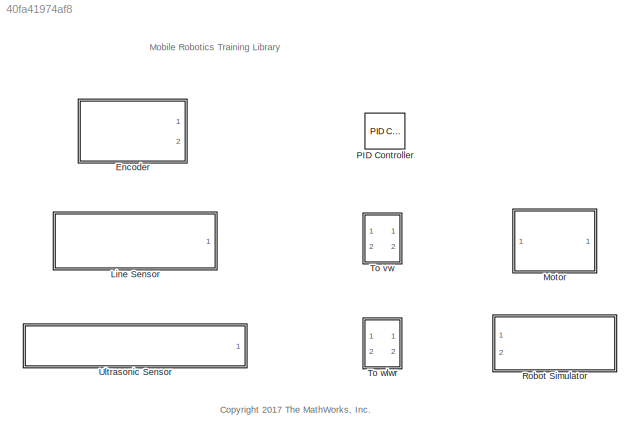
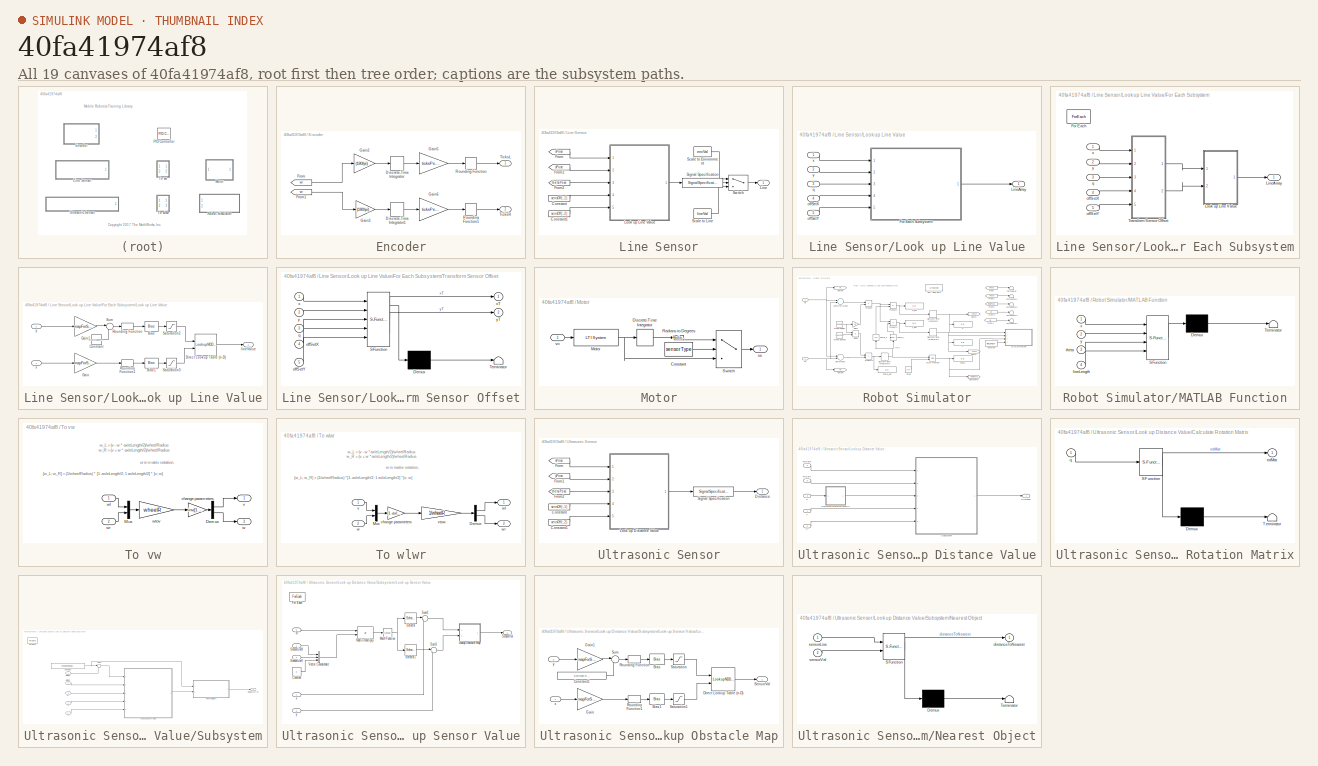
[diagram: thumbnail index - all 19 canvases of the model, root first then tree order]
MODEL slx_40fa41974af8
KIND library
CONFIG AbsTol = auto
CONFIG EnableMultiTasking = off
CONFIG FixedStep = 0.01
CONFIG MaxStep = auto
CONFIG MinStep = auto
CONFIG RelTol = 1e-3
CONFIG SampleTimeConstraint = Unconstrained
CONFIG Solver = FixedStepDiscrete
CONFIG SolverName = FixedStepDiscrete
CONFIG StartTime = 0.0
CONFIG StopTime = 10.0
BLOCK [SubSystem] Encoder
  Ports = [0, 2]
  RequestExecContextInheritance = off
  Variant = off
BLOCK [DiscreteIntegrator] Encoder/Discrete-Time Integrator
  ICPrevOutput = DiscIntNeverNeededParam
  ICPrevScaledInput = DiscIntNeverNeededParam
  InitialConditionSetting = State (most efficient)
  Ports = [1, 1]
  SampleTime = -1
BLOCK [DiscreteIntegrator] Encoder/Discrete-Time Integrator1
  ICPrevOutput = DiscIntNeverNeededParam
  ICPrevScaledInput = DiscIntNeverNeededParam
  InitialConditionSetting = State (most efficient)
  Ports = [1, 1]
  SampleTime = -1
BLOCK [From] Encoder/From
  GotoTag = wl
  TagVisibility = global
BLOCK [From] Encoder/From1
  GotoTag = wr
  TagVisibility = global
BLOCK [Gain] Encoder/Gain2
  Gain = (180/pi)
  OutDataTypeStr = Inherit: Inherit via internal rule
  ParamDataTypeStr = Inherit: Inherit via internal rule
  SaturateOnIntegerOverflow = off
BLOCK [Gain] Encoder/Gain3
  Gain = (180/pi)
  OutDataTypeStr = Inherit: Inherit via internal rule
  ParamDataTypeStr = Inherit: Inherit via internal rule
  SaturateOnIntegerOverflow = off
BLOCK [Gain] Encoder/Gain5
  Gain = ticksPerRot/360
  OutDataTypeStr = Inherit: Inherit via internal rule
  ParamDataTypeStr = Inherit: Inherit via internal rule
  SaturateOnIntegerOverflow = off
BLOCK [Gain] Encoder/Gain6
  Gain = ticksPerRot/360
  OutDataTypeStr = Inherit: Inherit via internal rule
  ParamDataTypeStr = Inherit: Inherit via internal rule
  SaturateOnIntegerOverflow = off
BLOCK [Rounding] Encoder/Rounding Function
  Operator = ceil
BLOCK [Rounding] Encoder/Rounding Function1
  Operator = ceil
BLOCK [Outport] Encoder/TicksL
  IconDisplay = Port number
BLOCK [Outport] Encoder/TicksR
  IconDisplay = Port number
  Port = 2
BLOCK [SubSystem] Line Sensor
  Ports = [0, 1]
  RequestExecContextInheritance = off
  Variant = off
BLOCK [Constant] Line Sensor/Constant
  Value = sensOff(:,1)
BLOCK [Constant] Line Sensor/Constant1
  Value = sensOff(:,2)
BLOCK [From] Line Sensor/From
  GotoTag = xPose
  TagVisibility = global
BLOCK [From] Line Sensor/From1
  GotoTag = yPose
  TagVisibility = global
BLOCK [From] Line Sensor/From2
  GotoTag = thetaPose
  TagVisibility = global
BLOCK [Outport] Line Sensor/Line
  IconDisplay = Port number
BLOCK [SubSystem] Line Sensor/Look up Line Value
  Ports = [5, 1]
  RequestExecContextInheritance = off
  Variant = off
BLOCK [SubSystem] Line Sensor/Look up Line Value/For Each Subsystem
  Ports = [5, 1]
  RequestExecContextInheritance = off
  TreatAsAtomicUnit = on
  Variant = off
BLOCK [ForEach] Line Sensor/Look up Line Value/For Each Subsystem/For Each
  DisableCoverage = on
  IndexMode = One-based
  Ports = []
BLOCK [Outport] Line Sensor/Look up Line Value/For Each Subsystem/LineArray
  ConcatenationDimension = 1
  IconDisplay = Port number
BLOCK [SubSystem] Line Sensor/Look up Line Value/For Each Subsystem/Look up Line Value
  Ports = [2, 1]
  RequestExecContextInheritance = off
  TreatAsAtomicUnit = on
  Variant = off
BLOCK [Bias] Line Sensor/Look up Line Value/For Each Subsystem/Look up Line Value/Bias
  Bias = -1
  SaturateOnIntegerOverflow = off
BLOCK [Bias] Line Sensor/Look up Line Value/For Each Subsystem/Look up Line Value/Bias1
  Bias = -1
  SaturateOnIntegerOverflow = off
BLOCK [Constant] Line Sensor/Look up Line Value/For Each Subsystem/Look up Line Value/Constant
  Value = size(mapForSim.lineFollowingMap,1)
BLOCK [LookupNDDirect] Line Sensor/Look up Line Value/For Each Subsystem/Look up Line Value/Direct Lookup Table (n-D)
  DiagnosticForOutOfRangeInput = Error
  Ports = [2, 1]
  Table = mapForSim.lineFollowingMap
BLOCK [Gain] Line Sensor/Look up Line Value/For Each Subsystem/Look up Line Value/Gain
  Gain = mapForSim.scaleFactor
  OutDataTypeStr = Inherit: Inherit via internal rule
  ParamDataTypeStr = Inherit: Inherit via internal rule
  SaturateOnIntegerOverflow = off
BLOCK [Gain] Line Sensor/Look up Line Value/For Each Subsystem/Look up Line Value/Gain1
  Gain = mapForSim.scaleFactor
  OutDataTypeStr = Inherit: Inherit via internal rule
  ParamDataTypeStr = Inherit: Inherit via internal rule
  SaturateOnIntegerOverflow = off
BLOCK [Rounding] Line Sensor/Look up Line Value/For Each Subsystem/Look up Line Value/Rounding Function
  Operator = round
BLOCK [Rounding] Line Sensor/Look up Line Value/For Each Subsystem/Look up Line Value/Rounding Function1
  Operator = round
BLOCK [Saturate] Line Sensor/Look up Line Value/For Each Subsystem/Look up Line Value/Saturation2
  InputPortMap = u0
  LowerLimit = 0
  Ports = [1, 1]
  UpperLimit = size(mapForSim.lineFollowingMap,1)-1
BLOCK [Saturate] Line Sensor/Look up Line Value/For Each Subsystem/Look up Line Value/Saturation3
  InputPortMap = u0
  LowerLimit = 0
  Ports = [1, 1]
  UpperLimit = size(mapForSim.lineFollowingMap,2)-1
BLOCK [Sum] Line Sensor/Look up Line Value/For Each Subsystem/Look up Line Value/Sum
  IconShape = round
  InputSameDT = off
  Inputs = |-+
  OutDataTypeStr = Inherit: Inherit via internal rule
  Ports = [2, 1]
  SaturateOnIntegerOverflow = off
BLOCK [Outport] Line Sensor/Look up Line Value/For Each Subsystem/Look up Line Value/lineValue
  IconDisplay = Port number
BLOCK [Inport] Line Sensor/Look up Line Value/For Each Subsystem/Look up Line Value/x
  IconDisplay = Port number
BLOCK [Inport] Line Sensor/Look up Line Value/For Each Subsystem/Look up Line Value/y
  IconDisplay = Port number
  Port = 2
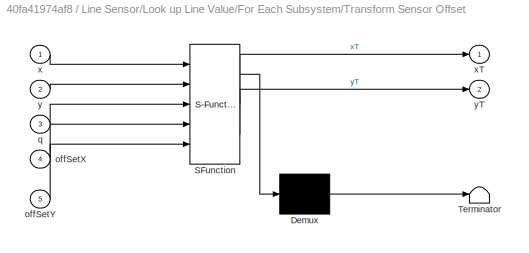
BLOCK [SubSystem] Line Sensor/Look up Line Value/For Each Subsystem/Transform Sensor Offset
  ErrorFcn = Stateflow.Translate.translate
  PermitHierarchicalResolution = ExplicitOnly
  Ports = [5, 2]
  RequestExecContextInheritance = off
  SFBlockType = MATLAB Function
  TreatAsAtomicUnit = on
  Variant = off
BLOCK [Demux] Line Sensor/Look up Line Value/For Each Subsystem/Transform Sensor Offset/ Demux 
  Outputs = 1
  Ports = [1, 1]
BLOCK [S-Function] Line Sensor/Look up Line Value/For Each Subsystem/Transform Sensor Offset/ SFunction 
  EnableBusSupport = off
  FunctionName = sf_sfun
  PortCounts = [5 3]
  Ports = [5, 3]
  SFcnIsStateOwnerBlock = off
  SFunctionDeploymentMode = off
  Tag = Stateflow S-Function mobileRoboticsTrainingLib 2
BLOCK [Terminator] Line Sensor/Look up Line Value/For Each Subsystem/Transform Sensor Offset/ Terminator 
BLOCK [Inport] Line Sensor/Look up Line Value/For Each Subsystem/Transform Sensor Offset/offSetX
  IconDisplay = Port number
  Port = 4
BLOCK [Inport] Line Sensor/Look up Line Value/For Each Subsystem/Transform Sensor Offset/offSetY
  IconDisplay = Port number
  Port = 5
BLOCK [Inport] Line Sensor/Look up Line Value/For Each Subsystem/Transform Sensor Offset/q
  IconDisplay = Port number
  Port = 3
BLOCK [Inport] Line Sensor/Look up Line Value/For Each Subsystem/Transform Sensor Offset/x
  IconDisplay = Port number
BLOCK [Outport] Line Sensor/Look up Line Value/For Each Subsystem/Transform Sensor Offset/xT
  IconDisplay = Port number
BLOCK [Inport] Line Sensor/Look up Line Value/For Each Subsystem/Transform Sensor Offset/y
  IconDisplay = Port number
  Port = 2
BLOCK [Outport] Line Sensor/Look up Line Value/For Each Subsystem/Transform Sensor Offset/yT
  IconDisplay = Port number
  Port = 2
BLOCK [Inport] Line Sensor/Look up Line Value/For Each Subsystem/offSetX
  IconDisplay = Port number
  Partition = on
  PartitionDimension = 1
  PartitionWidth = 1
  Port = 4
BLOCK [Inport] Line Sensor/Look up Line Value/For Each Subsystem/offSetY
  IconDisplay = Port number
  Partition = on
  PartitionDimension = 1
  PartitionWidth = 1
  Port = 5
BLOCK [Inport] Line Sensor/Look up Line Value/For Each Subsystem/q
  IconDisplay = Port number
  Port = 3
BLOCK [Inport] Line Sensor/Look up Line Value/For Each Subsystem/x
  IconDisplay = Port number
BLOCK [Inport] Line Sensor/Look up Line Value/For Each Subsystem/y
  IconDisplay = Port number
  Port = 2
BLOCK [Outport] Line Sensor/Look up Line Value/LineArray
  IconDisplay = Port number
BLOCK [Inport] Line Sensor/Look up Line Value/offSetX
  IconDisplay = Port number
  Port = 4
BLOCK [Inport] Line Sensor/Look up Line Value/offSetY
  IconDisplay = Port number
  Port = 5
BLOCK [Inport] Line Sensor/Look up Line Value/q
  IconDisplay = Port number
  Port = 3
BLOCK [Inport] Line Sensor/Look up Line Value/x
  IconDisplay = Port number
BLOCK [Inport] Line Sensor/Look up Line Value/y
  IconDisplay = Port number
  Port = 2
BLOCK [Constant] Line Sensor/Scale to Environment
  Value = envVal
BLOCK [Constant] Line Sensor/Scale to Line
  Value = lineVal
BLOCK [SignalSpecification] Line Sensor/Signal Specification
  Dimensions = length(sensOff(:,1))
BLOCK [Switch] Line Sensor/Switch
  Criteria = u2 > Threshold
  InputSameDT = off
  SaturateOnIntegerOverflow = off
BLOCK [SubSystem] Motor
  Ports = [1, 1]
  RequestExecContextInheritance = off
  Variant = off
BLOCK [Constant] Motor/Constant
  Value = sensorType
BLOCK [DiscreteIntegrator] Motor/Discrete-Time Integrator
  ICPrevOutput = DiscIntNeverNeededParam
  ICPrevScaledInput = DiscIntNeverNeededParam
  InitialConditionSetting = State (most efficient)
  Ports = [1, 1]
  SampleTime = -1
BLOCK [Reference] Motor/Motor  REF=cstblocks/LTI System
  Ports = [1, 1]
  SourceBlock = cstblocks/LTI System
  SourceProductBaseCode = CT
  SourceProductName = Control System Toolbox
  SourceType = LTI Block
BLOCK [Reference] Motor/Radians to Degrees  REF=simulink_extras/Transformations/Radians
to Degrees
  Ports = [1, 1]
  SourceBlock = simulink_extras/Transformations/Radians\nto Degrees
  SourceProductBaseCode = SL
  SourceProductName = Simulink
  SourceType = RadiansToDegrees
BLOCK [Switch] Motor/Switch
  Criteria = u2 > Threshold
  InputSameDT = off
  SaturateOnIntegerOverflow = off
  Threshold = 1
BLOCK [Outport] Motor/se
  IconDisplay = Port number
BLOCK [Inport] Motor/vo
  IconDisplay = Port number
BLOCK [Reference] PID Controller  REF=simulink/Continuous/PID Controller
  Ports = [1, 1]
  SourceBlock = simulink/Continuous/PID Controller
  SourceProductBaseCode = SL
  SourceProductName = Simulink
  SourceType = PID 1dof
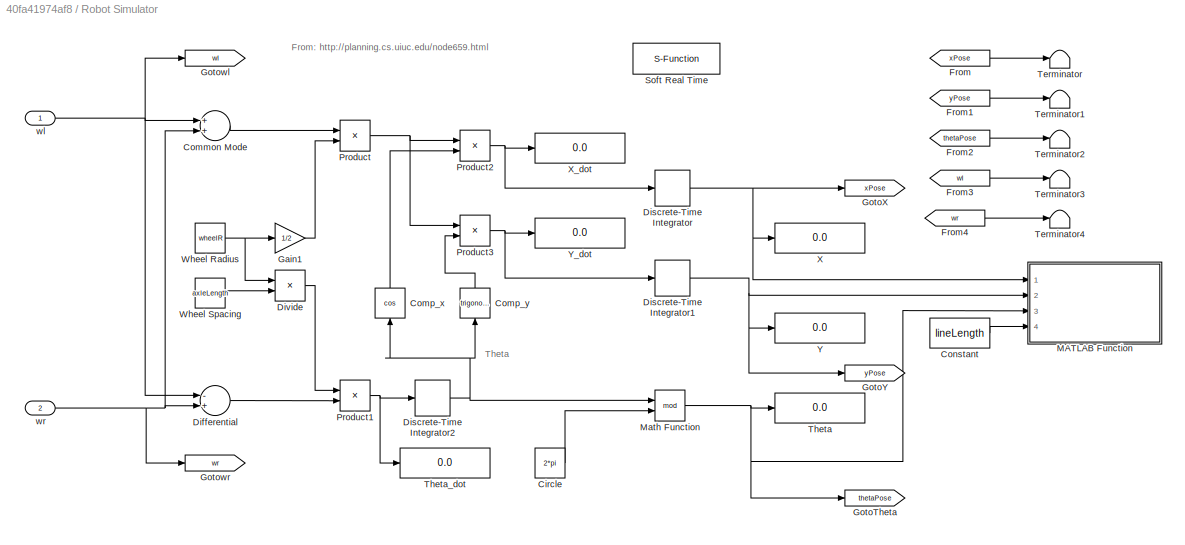
BLOCK [SubSystem] Robot Simulator
  Ports = [2]
  Priority = 99
  RequestExecContextInheritance = off
  Variant = off
BLOCK [Constant] Robot Simulator/Circle
  Value = 2*pi
BLOCK [Sum] Robot Simulator/Common Mode
  InputSameDT = off
  OutDataTypeStr = Inherit: Inherit via internal rule
  Ports = [2, 1]
  SaturateOnIntegerOverflow = off
BLOCK [Trigonometry] Robot Simulator/Comp_x
  Operator = cos
  Ports = [1, 1]
BLOCK [Trigonometry] Robot Simulator/Comp_y
  Ports = [1, 1]
BLOCK [Constant] Robot Simulator/Constant
  Value = lineLength
BLOCK [Sum] Robot Simulator/Differential
  InputSameDT = off
  Inputs = -+
  OutDataTypeStr = Inherit: Inherit via internal rule
  Ports = [2, 1]
  SaturateOnIntegerOverflow = off
BLOCK [DiscreteIntegrator] Robot Simulator/Discrete-Time Integrator
  ICPrevOutput = DiscIntNeverNeededParam
  ICPrevScaledInput = DiscIntNeverNeededParam
  InitialCondition = startX
  InitialConditionSetting = State (most efficient)
  Ports = [1, 1]
  SampleTime = -1
BLOCK [DiscreteIntegrator] Robot Simulator/Discrete-Time Integrator1
  ICPrevOutput = DiscIntNeverNeededParam
  ICPrevScaledInput = DiscIntNeverNeededParam
  InitialCondition = startY
  InitialConditionSetting = State (most efficient)
  Ports = [1, 1]
  SampleTime = -1
BLOCK [DiscreteIntegrator] Robot Simulator/Discrete-Time Integrator2
  ICPrevOutput = DiscIntNeverNeededParam
  ICPrevScaledInput = DiscIntNeverNeededParam
  InitialCondition = startTheta*(pi/180)
  InitialConditionSetting = State (most efficient)
  Ports = [1, 1]
  SampleTime = -1
BLOCK [Product] Robot Simulator/Divide
  InputSameDT = off
  Inputs = */
  OutDataTypeStr = Inherit: Inherit via internal rule
  Ports = [2, 1]
  RndMeth = Floor
  SaturateOnIntegerOverflow = off
BLOCK [From] Robot Simulator/From
  GotoTag = xPose
  TagVisibility = global
BLOCK [From] Robot Simulator/From1
  GotoTag = yPose
  TagVisibility = global
BLOCK [From] Robot Simulator/From2
  GotoTag = thetaPose
  TagVisibility = global
BLOCK [From] Robot Simulator/From3
  GotoTag = wl
BLOCK [From] Robot Simulator/From4
  GotoTag = wr
BLOCK [Gain] Robot Simulator/Gain1
  Gain = 1/2
  OutDataTypeStr = Inherit: Inherit via internal rule
  ParamDataTypeStr = Inherit: Inherit via internal rule
  SaturateOnIntegerOverflow = off
BLOCK [Goto] Robot Simulator/GotoTheta
  GotoTag = thetaPose
  TagVisibility = global
BLOCK [Goto] Robot Simulator/GotoX
  GotoTag = xPose
  TagVisibility = global
BLOCK [Goto] Robot Simulator/GotoY
  GotoTag = yPose
  TagVisibility = global
BLOCK [Goto] Robot Simulator/Gotowl
  GotoTag = wl
  TagVisibility = global
BLOCK [Goto] Robot Simulator/Gotowr
  GotoTag = wr
  TagVisibility = global
BLOCK [SubSystem] Robot Simulator/MATLAB Function
  ErrorFcn = Stateflow.Translate.translate
  PermitHierarchicalResolution = ExplicitOnly
  Ports = [4]
  RequestExecContextInheritance = off
  SFBlockType = MATLAB Function
  TreatAsAtomicUnit = on
  Variant = off
BLOCK [Demux] Robot Simulator/MATLAB Function/ Demux 
  Outputs = 1
  Ports = [1, 1]
BLOCK [S-Function] Robot Simulator/MATLAB Function/ SFunction 
  EnableBusSupport = off
  FunctionName = sf_sfun
  PortCounts = [4 1]
  Ports = [4, 1]
  SFcnIsStateOwnerBlock = off
  SFunctionDeploymentMode = off
  Tag = Stateflow S-Function mobileRoboticsTrainingLib 1
BLOCK [Terminator] Robot Simulator/MATLAB Function/ Terminator 
BLOCK [Inport] Robot Simulator/MATLAB Function/lineLength
  IconDisplay = Port number
  Port = 4
BLOCK [Inport] Robot Simulator/MATLAB Function/theta
  IconDisplay = Port number
  Port = 3
BLOCK [Inport] Robot Simulator/MATLAB Function/x
  IconDisplay = Port number
BLOCK [Inport] Robot Simulator/MATLAB Function/y
  IconDisplay = Port number
  Port = 2
BLOCK [Math] Robot Simulator/Math Function
  Operator = mod
  Ports = [2, 1]
BLOCK [Product] Robot Simulator/Product
  InputSameDT = off
  OutDataTypeStr = Inherit: Inherit via internal rule
  Ports = [2, 1]
  SaturateOnIntegerOverflow = off
BLOCK [Product] Robot Simulator/Product1
  InputSameDT = off
  OutDataTypeStr = Inherit: Inherit via internal rule
  Ports = [2, 1]
  SaturateOnIntegerOverflow = off
BLOCK [Product] Robot Simulator/Product2
  InputSameDT = off
  OutDataTypeStr = Inherit: Inherit via internal rule
  Ports = [2, 1]
  SaturateOnIntegerOverflow = off
BLOCK [Product] Robot Simulator/Product3
  InputSameDT = off
  OutDataTypeStr = Inherit: Inherit via internal rule
  Ports = [2, 1]
  SaturateOnIntegerOverflow = off
BLOCK [S-Function] Robot Simulator/Soft Real Time
  EnableBusSupport = off
  FunctionName = sfun_time
  Parameters = x
  Ports = []
  SFcnIsStateOwnerBlock = off
  SFunctionDeploymentMode = off
BLOCK [Terminator] Robot Simulator/Terminator
BLOCK [Terminator] Robot Simulator/Terminator1
BLOCK [Terminator] Robot Simulator/Terminator2
BLOCK [Terminator] Robot Simulator/Terminator3
BLOCK [Terminator] Robot Simulator/Terminator4
BLOCK [Display] Robot Simulator/Theta
  Decimation = 1
  Ports = [1]
BLOCK [Display] Robot Simulator/Theta_dot
  Decimation = 1
  Ports = [1]
BLOCK [Constant] Robot Simulator/Wheel Radius
  Value = wheelR
BLOCK [Constant] Robot Simulator/Wheel Spacing
  Value = axleLength
BLOCK [Display] Robot Simulator/X
  Decimation = 1
  Ports = [1]
BLOCK [Display] Robot Simulator/X_dot
  Decimation = 1
  Ports = [1]
BLOCK [Display] Robot Simulator/Y
  Decimation = 1
  Ports = [1]
BLOCK [Display] Robot Simulator/Y_dot
  Decimation = 1
  Ports = [1]
BLOCK [Inport] Robot Simulator/wl
  IconDisplay = Port number
BLOCK [Inport] Robot Simulator/wr
  IconDisplay = Port number
  Port = 2
BLOCK [SubSystem] To vw
  Ports = [2, 2]
  RequestExecContextInheritance = off
  Variant = off
BLOCK [Demux] To vw/Demux
  DisplayOption = bar
  Outputs = 2
  Ports = [1, 2]
BLOCK [Mux] To vw/Mux
  DisplayOption = bar
  Inputs = 2
  Ports = [2, 1]
BLOCK [Gain] To vw/change parameters
  Gain = inv([1 -axleLength/2; 1 axleLength/2])
  Multiplication = Matrix(K*u)
  OutDataTypeStr = Inherit: Inherit via internal rule
  ParamDataTypeStr = Inherit: Inherit via internal rule
  SaturateOnIntegerOverflow = off
BLOCK [Outport] To vw/v
  IconDisplay = Port number
BLOCK [Outport] To vw/w
  IconDisplay = Port number
  Port = 2
BLOCK [Inport] To vw/wl
  IconDisplay = Port number
BLOCK [Inport] To vw/wr
  IconDisplay = Port number
  Port = 2
BLOCK [Gain] To vw/wtov
  Gain = wheelR
  Multiplication = Matrix(K*u)
  OutDataTypeStr = Inherit: Inherit via internal rule
  ParamDataTypeStr = Inherit: Inherit via internal rule
  SaturateOnIntegerOverflow = off
BLOCK [SubSystem] To wlwr
  Ports = [2, 2]
  RequestExecContextInheritance = off
  Variant = off
BLOCK [Demux] To wlwr/Demux
  DisplayOption = bar
  Outputs = 2
  Ports = [1, 2]
BLOCK [Mux] To wlwr/Mux
  DisplayOption = bar
  Inputs = 2
  Ports = [2, 1]
BLOCK [Gain] To wlwr/change parameters
  Gain = [1 -axleLength/2; 1 axleLength/2]
  Multiplication = Matrix(K*u)
  OutDataTypeStr = Inherit: Inherit via internal rule
  ParamDataTypeStr = Inherit: Inherit via internal rule
  SaturateOnIntegerOverflow = off
BLOCK [Inport] To wlwr/v
  IconDisplay = Port number
BLOCK [Gain] To wlwr/vtow
  Gain = 1/wheelR
  Multiplication = Matrix(K*u)
  OutDataTypeStr = Inherit: Inherit via internal rule
  ParamDataTypeStr = Inherit: Inherit via internal rule
  SaturateOnIntegerOverflow = off
BLOCK [Inport] To wlwr/w
  IconDisplay = Port number
  Port = 2
BLOCK [Outport] To wlwr/wl
  IconDisplay = Port number
BLOCK [Outport] To wlwr/wr
  IconDisplay = Port number
  Port = 2
BLOCK [SubSystem] Ultrasonic Sensor
  Ports = [0, 1]
  RequestExecContextInheritance = off
  Variant = off
BLOCK [Constant] Ultrasonic Sensor/Constant
  Value = sensOff(:,1)
BLOCK [Constant] Ultrasonic Sensor/Constant1
  Value = sensOff(:,2)
BLOCK [Outport] Ultrasonic Sensor/Distance
  IconDisplay = Port number
BLOCK [From] Ultrasonic Sensor/From
  GotoTag = xPose
  TagVisibility = global
BLOCK [From] Ultrasonic Sensor/From1
  GotoTag = yPose
  TagVisibility = global
BLOCK [From] Ultrasonic Sensor/From2
  GotoTag = thetaPose
  TagVisibility = global
BLOCK [SubSystem] Ultrasonic Sensor/Look up Distance Value
  Ports = [5, 1]
  RequestExecContextInheritance = off
  Variant = off
BLOCK [SubSystem] Ultrasonic Sensor/Look up Distance Value/Calculate Rotation Matrix
  ErrorFcn = Stateflow.Translate.translate
  PermitHierarchicalResolution = ExplicitOnly
  Ports = [1, 1]
  RequestExecContextInheritance = off
  SFBlockType = MATLAB Function
  TreatAsAtomicUnit = on
  Variant = off
BLOCK [Demux] Ultrasonic Sensor/Look up Distance Value/Calculate Rotation Matrix/ Demux 
  Outputs = 1
  Ports = [1, 1]
BLOCK [S-Function] Ultrasonic Sensor/Look up Distance Value/Calculate Rotation Matrix/ SFunction 
  EnableBusSupport = off
  FunctionName = sf_sfun
  PortCounts = [1 2]
  Ports = [1, 2]
  SFcnIsStateOwnerBlock = off
  SFunctionDeploymentMode = off
  Tag = Stateflow S-Function mobileRoboticsTrainingLib 4
BLOCK [Terminator] Ultrasonic Sensor/Look up Distance Value/Calculate Rotation Matrix/ Terminator 
BLOCK [Inport] Ultrasonic Sensor/Look up Distance Value/Calculate Rotation Matrix/q
  IconDisplay = Port number
BLOCK [Outport] Ultrasonic Sensor/Look up Distance Value/Calculate Rotation Matrix/rotMat
  IconDisplay = Port number
BLOCK [Outport] Ultrasonic Sensor/Look up Distance Value/Distance
  IconDisplay = Port number
BLOCK [SubSystem] Ultrasonic Sensor/Look up Distance Value/Subsystem
  Ports = [5, 1]
  RequestExecContextInheritance = off
  Variant = off
BLOCK [Constant] Ultrasonic Sensor/Look up Distance Value/Subsystem/Constant
  Value = minSenRange:senRes:maxSenRange
BLOCK [Outport] Ultrasonic Sensor/Look up Distance Value/Subsystem/DistanceArray
  ConcatenationDimension = 1
  IconDisplay = Port number
BLOCK [ForEach] Ultrasonic Sensor/Look up Distance Value/Subsystem/For Each
  DisableCoverage = on
  IndexMode = One-based
  Ports = []
BLOCK [SubSystem] Ultrasonic Sensor/Look up Distance Value/Subsystem/Look up Sensor Value
  Ports = [5, 1]
  RequestExecContextInheritance = off
  TreatAsAtomicUnit = on
  Variant = off
BLOCK [Constant] Ultrasonic Sensor/Look up Distance Value/Subsystem/Look up Sensor Value/Constant
  Value = 0
BLOCK [ForEach] Ultrasonic Sensor/Look up Distance Value/Subsystem/Look up Sensor Value/For Each
  DisableCoverage = on
  IndexMode = One-based
  Ports = []
BLOCK [SubSystem] Ultrasonic Sensor/Look up Distance Value/Subsystem/Look up Sensor Value/Lookup Obstacle Map
  Ports = [2, 1]
  RequestExecContextInheritance = off
  Variant = off
BLOCK [Bias] Ultrasonic Sensor/Look up Distance Value/Subsystem/Look up Sensor Value/Lookup Obstacle Map/Bias
  Bias = -1
  SaturateOnIntegerOverflow = off
BLOCK [Bias] Ultrasonic Sensor/Look up Distance Value/Subsystem/Look up Sensor Value/Lookup Obstacle Map/Bias1
  Bias = -1
  SaturateOnIntegerOverflow = off
BLOCK [Constant] Ultrasonic Sensor/Look up Distance Value/Subsystem/Look up Sensor Value/Lookup Obstacle Map/Constant1
  Value = size(mapForSim.obsMap,1)
BLOCK [LookupNDDirect] Ultrasonic Sensor/Look up Distance Value/Subsystem/Look up Sensor Value/Lookup Obstacle Map/Direct Lookup Table (n-D)
  DiagnosticForOutOfRangeInput = Error
  Ports = [2, 1]
  Table = mapForSim.obsMap
BLOCK [Gain] Ultrasonic Sensor/Look up Distance Value/Subsystem/Look up Sensor Value/Lookup Obstacle Map/Gain
  Gain = mapForSim.scaleFactor
  OutDataTypeStr = Inherit: Inherit via internal rule
  ParamDataTypeStr = Inherit: Inherit via internal rule
  SaturateOnIntegerOverflow = off
BLOCK [Gain] Ultrasonic Sensor/Look up Distance Value/Subsystem/Look up Sensor Value/Lookup Obstacle Map/Gain1
  Gain = mapForSim.scaleFactor
  OutDataTypeStr = Inherit: Inherit via internal rule
  ParamDataTypeStr = Inherit: Inherit via internal rule
  SaturateOnIntegerOverflow = off
BLOCK [Rounding] Ultrasonic Sensor/Look up Distance Value/Subsystem/Look up Sensor Value/Lookup Obstacle Map/Rounding Function
  Operator = round
BLOCK [Rounding] Ultrasonic Sensor/Look up Distance Value/Subsystem/Look up Sensor Value/Lookup Obstacle Map/Rounding Function1
  Operator = round
BLOCK [Saturate] Ultrasonic Sensor/Look up Distance Value/Subsystem/Look up Sensor Value/Lookup Obstacle Map/Saturation
  InputPortMap = u0
  LowerLimit = 0
  Ports = [1, 1]
  UpperLimit = size(mapForSim.obsMap,1)-1
BLOCK [Saturate] Ultrasonic Sensor/Look up Distance Value/Subsystem/Look up Sensor Value/Lookup Obstacle Map/Saturation1
  InputPortMap = u0
  LowerLimit = 0
  Ports = [1, 1]
  UpperLimit = size(mapForSim.obsMap,2)-1
BLOCK [Outport] Ultrasonic Sensor/Look up Distance Value/Subsystem/Look up Sensor Value/Lookup Obstacle Map/SensorVal
  IconDisplay = Port number
BLOCK [Sum] Ultrasonic Sensor/Look up Distance Value/Subsystem/Look up Sensor Value/Lookup Obstacle Map/Sum
  IconShape = round
  InputSameDT = off
  Inputs = |-+
  OutDataTypeStr = Inherit: Inherit via internal rule
  Ports = [2, 1]
  SaturateOnIntegerOverflow = off
BLOCK [Inport] Ultrasonic Sensor/Look up Distance Value/Subsystem/Look up Sensor Value/Lookup Obstacle Map/x
  IconDisplay = Port number
BLOCK [Inport] Ultrasonic Sensor/Look up Distance Value/Subsystem/Look up Sensor Value/Lookup Obstacle Map/y
  IconDisplay = Port number
  Port = 2
BLOCK [Math] Ultrasonic Sensor/Look up Distance Value/Subsystem/Look up Sensor Value/Math Function
  Operator = transpose
  Ports = [1, 1]
BLOCK [Product] Ultrasonic Sensor/Look up Distance Value/Subsystem/Look up Sensor Value/Matrix Multiply
  InputSameDT = off
  Multiplication = Matrix(*)
  OutDataTypeStr = Inherit: Inherit via internal rule
  Ports = [2, 1]
  RndMeth = Floor
  SaturateOnIntegerOverflow = off
BLOCK [Inport] Ultrasonic Sensor/Look up Distance Value/Subsystem/Look up Sensor Value/R
  IconDisplay = Port number
  Port = 3
BLOCK [Selector] Ultrasonic Sensor/Look up Distance Value/Subsystem/Look up Sensor Value/Selector
  IndexOptions = Index vector (dialog)
  Indices = 1
  InputPortWidth = 3
  OutputSizes = 1
  Ports = [1, 1]
BLOCK [Selector] Ultrasonic Sensor/Look up Distance Value/Subsystem/Look up Sensor Value/Selector1
  IndexOptions = Index vector (dialog)
  Indices = [2]
  InputPortWidth = 3
  OutputSizes = 1
  Ports = [1, 1]
BLOCK [Inport] Ultrasonic Sensor/Look up Distance Value/Subsystem/Look up Sensor Value/SensorLineX
  IconDisplay = Port number
  Partition = on
  PartitionDimension = 1
  PartitionWidth = 1
BLOCK [Inport] Ultrasonic Sensor/Look up Distance Value/Subsystem/Look up Sensor Value/SensorLineY
  IconDisplay = Port number
  Port = 2
BLOCK [Outport] Ultrasonic Sensor/Look up Distance Value/Subsystem/Look up Sensor Value/SensorVal
  ConcatenationDimension = 1
  IconDisplay = Port number
BLOCK [Sum] Ultrasonic Sensor/Look up Distance Value/Subsystem/Look up Sensor Value/Sum2
  IconShape = round
  InputSameDT = off
  Inputs = |++
  OutDataTypeStr = Inherit: Inherit via internal rule
  Ports = [2, 1]
  SaturateOnIntegerOverflow = off
BLOCK [Sum] Ultrasonic Sensor/Look up Distance Value/Subsystem/Look up Sensor Value/Sum3
  IconShape = round
  InputSameDT = off
  Inputs = |++
  OutDataTypeStr = Inherit: Inherit via internal rule
  Ports = [2, 1]
  SaturateOnIntegerOverflow = off
BLOCK [Concatenate] Ultrasonic Sensor/Look up Distance Value/Subsystem/Look up Sensor Value/Vector Concatenate
  Mode = Multidimensional array
  NumInputs = 3
  Ports = [3, 1]
BLOCK [Inport] Ultrasonic Sensor/Look up Distance Value/Subsystem/Look up Sensor Value/x
  IconDisplay = Port number
  Port = 4
BLOCK [Inport] Ultrasonic Sensor/Look up Distance Value/Subsystem/Look up Sensor Value/y
  IconDisplay = Port number
  Port = 5
BLOCK [SubSystem] Ultrasonic Sensor/Look up Distance Value/Subsystem/Nearest Object
  ErrorFcn = Stateflow.Translate.translate
  PermitHierarchicalResolution = ExplicitOnly
  Ports = [2, 1]
  RequestExecContextInheritance = off
  SFBlockType = MATLAB Function
  TreatAsAtomicUnit = on
  Variant = off
BLOCK [Demux] Ultrasonic Sensor/Look up Distance Value/Subsystem/Nearest Object/ Demux 
  Outputs = 1
  Ports = [1, 1]
BLOCK [S-Function] Ultrasonic Sensor/Look up Distance Value/Subsystem/Nearest Object/ SFunction 
  EnableBusSupport = off
  FunctionName = sf_sfun
  PortCounts = [2 2]
  Ports = [2, 2]
  SFcnIsStateOwnerBlock = off
  SFunctionDeploymentMode = off
  Tag = Stateflow S-Function mobileRoboticsTrainingLib 5
BLOCK [Terminator] Ultrasonic Sensor/Look up Distance Value/Subsystem/Nearest Object/ Terminator 
BLOCK [Outport] Ultrasonic Sensor/Look up Distance Value/Subsystem/Nearest Object/distanceToNearest
  IconDisplay = Port number
BLOCK [Inport] Ultrasonic Sensor/Look up Distance Value/Subsystem/Nearest Object/sensorLine
  IconDisplay = Port number
BLOCK [Inport] Ultrasonic Sensor/Look up Distance Value/Subsystem/Nearest Object/sensorVal
  IconDisplay = Port number
  Port = 2
BLOCK [Inport] Ultrasonic Sensor/Look up Distance Value/Subsystem/R
  IconDisplay = Port number
  Port = 3
BLOCK [Sum] Ultrasonic Sensor/Look up Distance Value/Subsystem/Sum1
  IconShape = round
  InputSameDT = off
  Inputs = |++
  OutDataTypeStr = Inherit: Inherit via internal rule
  Ports = [2, 1]
  SaturateOnIntegerOverflow = off
BLOCK [Inport] Ultrasonic Sensor/Look up Distance Value/Subsystem/offSetX
  IconDisplay = Port number
  Partition = on
  PartitionDimension = 1
  PartitionWidth = 1
BLOCK [Inport] Ultrasonic Sensor/Look up Distance Value/Subsystem/offSetY
  IconDisplay = Port number
  Partition = on
  PartitionDimension = 1
  PartitionWidth = 1
  Port = 2
BLOCK [Inport] Ultrasonic Sensor/Look up Distance Value/Subsystem/x
  IconDisplay = Port number
  Port = 4
BLOCK [Inport] Ultrasonic Sensor/Look up Distance Value/Subsystem/y
  IconDisplay = Port number
  Port = 5
BLOCK [Inport] Ultrasonic Sensor/Look up Distance Value/offSetX
  IconDisplay = Port number
  Port = 4
BLOCK [Inport] Ultrasonic Sensor/Look up Distance Value/offSetY
  IconDisplay = Port number
  Port = 5
BLOCK [Inport] Ultrasonic Sensor/Look up Distance Value/q
  IconDisplay = Port number
  Port = 3
BLOCK [Inport] Ultrasonic Sensor/Look up Distance Value/x
  IconDisplay = Port number
BLOCK [Inport] Ultrasonic Sensor/Look up Distance Value/y
  IconDisplay = Port number
  Port = 2
BLOCK [SignalSpecification] Ultrasonic Sensor/Signal Specification
  Dimensions = length(sensOff(:,1))
ANNOTATION (root): Mobile Robotics Training Library
ANNOTATION (root): <copyright redacted>
ANNOTATION Robot Simulator: From: http://planning.cs.uiuc.edu/node659.html
ANNOTATION Robot Simulator: Theta
ANNOTATION To vw: [w_L; w_R] = (1/wheelRadius) * [1 -axleLength/2; 1 axleLength/2] * [v; w]
ANNOTATION To vw: or in matrix notation,
ANNOTATION To vw: w_L = (v - w * axleLength/2)/wheelRadius w_R = (v + w * axleLength/2)/wheelRadius
ANNOTATION To wlwr: [w_L; w_R] = (1/wheelRadius) * [1 -axleLength/2; 1 axleLength/2] * [v; w]
ANNOTATION To wlwr: or in matrix notation,
ANNOTATION To wlwr: w_L = (v - w * axleLength/2)/wheelRadius w_R = (v + w * axleLength/2)/wheelRadius
LINE Encoder/Discrete-Time Integrator1:1 -> Encoder/Gain6:1
LINE Encoder/Discrete-Time Integrator:1 -> Encoder/Gain5:1
LINE Encoder/From1:1 -> Encoder/Gain3:1
LINE Encoder/From:1 -> Encoder/Gain2:1
LINE Encoder/Gain2:1 -> Encoder/Discrete-Time Integrator:1
LINE Encoder/Gain3:1 -> Encoder/Discrete-Time Integrator1:1
LINE Encoder/Gain5:1 -> Encoder/Rounding Function:1
LINE Encoder/Gain6:1 -> Encoder/Rounding Function1:1
LINE Encoder/Rounding Function1:1 -> Encoder/TicksR:1
LINE Encoder/Rounding Function:1 -> Encoder/TicksL:1
LINE Line Sensor/Constant1:1 -> Line Sensor/Look up Line Value:5
LINE Line Sensor/Constant:1 -> Line Sensor/Look up Line Value:4
LINE Line Sensor/From1:1 -> Line Sensor/Look up Line Value:2
LINE Line Sensor/From2:1 -> Line Sensor/Look up Line Value:3
LINE Line Sensor/From:1 -> Line Sensor/Look up Line Value:1
LINE Line Sensor/Look up Line Value/For Each Subsystem/Look up Line Value/Bias1:1 -> Line Sensor/Look up Line Value/For Each Subsystem/Look up Line Value/Saturation3:1
LINE Line Sensor/Look up Line Value/For Each Subsystem/Look up Line Value/Bias:1 -> Line Sensor/Look up Line Value/For Each Subsystem/Look up Line Value/Saturation2:1
LINE Line Sensor/Look up Line Value/For Each Subsystem/Look up Line Value/Constant:1 -> Line Sensor/Look up Line Value/For Each Subsystem/Look up Line Value/Sum:2
LINE Line Sensor/Look up Line Value/For Each Subsystem/Look up Line Value/Direct Lookup Table (n-D):1 -> Line Sensor/Look up Line Value/For Each Subsystem/Look up Line Value/lineValue:1
LINE Line Sensor/Look up Line Value/For Each Subsystem/Look up Line Value/Gain1:1 -> Line Sensor/Look up Line Value/For Each Subsystem/Look up Line Value/Sum:1
LINE Line Sensor/Look up Line Value/For Each Subsystem/Look up Line Value/Gain:1 -> Line Sensor/Look up Line Value/For Each Subsystem/Look up Line Value/Rounding Function1:1
LINE Line Sensor/Look up Line Value/For Each Subsystem/Look up Line Value/Rounding Function1:1 -> Line Sensor/Look up Line Value/For Each Subsystem/Look up Line Value/Bias1:1
LINE Line Sensor/Look up Line Value/For Each Subsystem/Look up Line Value/Rounding Function:1 -> Line Sensor/Look up Line Value/For Each Subsystem/Look up Line Value/Bias:1
LINE Line Sensor/Look up Line Value/For Each Subsystem/Look up Line Value/Saturation2:1 -> Line Sensor/Look up Line Value/For Each Subsystem/Look up Line Value/Direct Lookup Table (n-D):1
LINE Line Sensor/Look up Line Value/For Each Subsystem/Look up Line Value/Saturation3:1 -> Line Sensor/Look up Line Value/For Each Subsystem/Look up Line Value/Direct Lookup Table (n-D):2
LINE Line Sensor/Look up Line Value/For Each Subsystem/Look up Line Value/Sum:1 -> Line Sensor/Look up Line Value/For Each Subsystem/Look up Line Value/Rounding Function:1
LINE Line Sensor/Look up Line Value/For Each Subsystem/Look up Line Value/x:1 -> Line Sensor/Look up Line Value/For Each Subsystem/Look up Line Value/Gain:1
LINE Line Sensor/Look up Line Value/For Each Subsystem/Look up Line Value/y:1 -> Line Sensor/Look up Line Value/For Each Subsystem/Look up Line Value/Gain1:1
LINE Line Sensor/Look up Line Value/For Each Subsystem/Look up Line Value:1 -> Line Sensor/Look up Line Value/For Each Subsystem/LineArray:1
LINE Line Sensor/Look up Line Value/For Each Subsystem/Transform Sensor Offset:1 -> Line Sensor/Look up Line Value/For Each Subsystem/Look up Line Value:1
LINE Line Sensor/Look up Line Value/For Each Subsystem/Transform Sensor Offset:2 -> Line Sensor/Look up Line Value/For Each Subsystem/Look up Line Value:2
LINE Line Sensor/Look up Line Value/For Each Subsystem/offSetX:1 -> Line Sensor/Look up Line Value/For Each Subsystem/Transform Sensor Offset:4
LINE Line Sensor/Look up Line Value/For Each Subsystem/offSetY:1 -> Line Sensor/Look up Line Value/For Each Subsystem/Transform Sensor Offset:5
LINE Line Sensor/Look up Line Value/For Each Subsystem/q:1 -> Line Sensor/Look up Line Value/For Each Subsystem/Transform Sensor Offset:3
LINE Line Sensor/Look up Line Value/For Each Subsystem/x:1 -> Line Sensor/Look up Line Value/For Each Subsystem/Transform Sensor Offset:1
LINE Line Sensor/Look up Line Value/For Each Subsystem/y:1 -> Line Sensor/Look up Line Value/For Each Subsystem/Transform Sensor Offset:2
LINE Line Sensor/Look up Line Value/For Each Subsystem:1 -> Line Sensor/Look up Line Value/LineArray:1
LINE Line Sensor/Look up Line Value/offSetX:1 -> Line Sensor/Look up Line Value/For Each Subsystem:4
LINE Line Sensor/Look up Line Value/offSetY:1 -> Line Sensor/Look up Line Value/For Each Subsystem:5
LINE Line Sensor/Look up Line Value/q:1 -> Line Sensor/Look up Line Value/For Each Subsystem:3
LINE Line Sensor/Look up Line Value/x:1 -> Line Sensor/Look up Line Value/For Each Subsystem:1
LINE Line Sensor/Look up Line Value/y:1 -> Line Sensor/Look up Line Value/For Each Subsystem:2
LINE Line Sensor/Look up Line Value:1 -> Line Sensor/Signal Specification:1
LINE Line Sensor/Scale to Environment:1 -> Line Sensor/Switch:1
LINE Line Sensor/Scale to Line:1 -> Line Sensor/Switch:3
LINE Line Sensor/Signal Specification:1 -> Line Sensor/Switch:2
LINE Line Sensor/Switch:1 -> Line Sensor/Line:1
LINE Motor/Constant:1 -> Motor/Switch:2
LINE Motor/Discrete-Time Integrator:1 -> Motor/Radians to Degrees:1
NET Motor/Motor:1 -> Motor/Discrete-Time Integrator:1, Motor/Switch:3
LINE Motor/Radians to Degrees:1 -> Motor/Switch:1
LINE Motor/Switch:1 -> Motor/se:1
LINE Motor/vo:1 -> Motor/Motor:1
LINE Robot Simulator/Circle:1 -> Robot Simulator/Math Function:2
LINE Robot Simulator/Common Mode:1 -> Robot Simulator/Product:1
LINE Robot Simulator/Comp_x:1 -> Robot Simulator/Product2:2
LINE Robot Simulator/Comp_y:1 -> Robot Simulator/Product3:2
LINE Robot Simulator/Constant:1 -> Robot Simulator/MATLAB Function:4
LINE Robot Simulator/Differential:1 -> Robot Simulator/Product1:2
NET Robot Simulator/Discrete-Time Integrator1:1 -> Robot Simulator/GotoY:1, Robot Simulator/MATLAB Function:2, Robot Simulator/Y:1
NET Robot Simulator/Discrete-Time Integrator2:1 -> Robot Simulator/Comp_x:1, Robot Simulator/Comp_y:1, Robot Simulator/Math Function:1
NET Robot Simulator/Discrete-Time Integrator:1 -> Robot Simulator/GotoX:1, Robot Simulator/MATLAB Function:1, Robot Simulator/X:1
LINE Robot Simulator/Divide:1 -> Robot Simulator/Product1:1
LINE Robot Simulator/From1:1 -> Robot Simulator/Terminator1:1
LINE Robot Simulator/From2:1 -> Robot Simulator/Terminator2:1
LINE Robot Simulator/From3:1 -> Robot Simulator/Terminator3:1
LINE Robot Simulator/From4:1 -> Robot Simulator/Terminator4:1
LINE Robot Simulator/From:1 -> Robot Simulator/Terminator:1
LINE Robot Simulator/Gain1:1 -> Robot Simulator/Product:2
NET Robot Simulator/Math Function:1 -> Robot Simulator/GotoTheta:1, Robot Simulator/MATLAB Function:3, Robot Simulator/Theta:1
NET Robot Simulator/Product1:1 -> Robot Simulator/Discrete-Time Integrator2:1, Robot Simulator/Theta_dot:1
NET Robot Simulator/Product2:1 -> Robot Simulator/Discrete-Time Integrator:1, Robot Simulator/X_dot:1
NET Robot Simulator/Product3:1 -> Robot Simulator/Discrete-Time Integrator1:1, Robot Simulator/Y_dot:1
NET Robot Simulator/Product:1 -> Robot Simulator/Product2:1, Robot Simulator/Product3:1
NET Robot Simulator/Wheel Radius:1 -> Robot Simulator/Divide:1, Robot Simulator/Gain1:1
LINE Robot Simulator/Wheel Spacing:1 -> Robot Simulator/Divide:2
NET Robot Simulator/wl:1 -> Robot Simulator/Common Mode:1, Robot Simulator/Differential:1, Robot Simulator/Gotowl:1
NET Robot Simulator/wr:1 -> Robot Simulator/Common Mode:2, Robot Simulator/Differential:2, Robot Simulator/Gotowr:1
LINE To vw/Demux:1 -> To vw/v:1
LINE To vw/Demux:2 -> To vw/w:1
LINE To vw/Mux:1 -> To vw/wtov:1
LINE To vw/change parameters:1 -> To vw/Demux:1
LINE To vw/wl:1 -> To vw/Mux:1
LINE To vw/wr:1 -> To vw/Mux:2
LINE To vw/wtov:1 -> To vw/change parameters:1
LINE To wlwr/Demux:1 -> To wlwr/wl:1
LINE To wlwr/Demux:2 -> To wlwr/wr:1
LINE To wlwr/Mux:1 -> To wlwr/change parameters:1
LINE To wlwr/change parameters:1 -> To wlwr/vtow:1
LINE To wlwr/v:1 -> To wlwr/Mux:1
LINE To wlwr/vtow:1 -> To wlwr/Demux:1
LINE To wlwr/w:1 -> To wlwr/Mux:2
LINE Ultrasonic Sensor/Constant1:1 -> Ultrasonic Sensor/Look up Distance Value:5
LINE Ultrasonic Sensor/Constant:1 -> Ultrasonic Sensor/Look up Distance Value:4
LINE Ultrasonic Sensor/From1:1 -> Ultrasonic Sensor/Look up Distance Value:2
LINE Ultrasonic Sensor/From2:1 -> Ultrasonic Sensor/Look up Distance Value:3
LINE Ultrasonic Sensor/From:1 -> Ultrasonic Sensor/Look up Distance Value:1
LINE Ultrasonic Sensor/Look up Distance Value/Calculate Rotation Matrix:1 -> Ultrasonic Sensor/Look up Distance Value/Subsystem:3
NET Ultrasonic Sensor/Look up Distance Value/Subsystem/Constant:1 -> Ultrasonic Sensor/Look up Distance Value/Subsystem/Nearest Object:1, Ultrasonic Sensor/Look up Distance Value/Subsystem/Sum1:1
LINE Ultrasonic Sensor/Look up Distance Value/Subsystem/Look up Sensor Value/Constant:1 -> Ultrasonic Sensor/Look up Distance Value/Subsystem/Look up Sensor Value/Vector Concatenate:3
LINE Ultrasonic Sensor/Look up Distance Value/Subsystem/Look up Sensor Value/Lookup Obstacle Map/Bias1:1 -> Ultrasonic Sensor/Look up Distance Value/Subsystem/Look up Sensor Value/Lookup Obstacle Map/Saturation1:1
LINE Ultrasonic Sensor/Look up Distance Value/Subsystem/Look up Sensor Value/Lookup Obstacle Map/Bias:1 -> Ultrasonic Sensor/Look up Distance Value/Subsystem/Look up Sensor Value/Lookup Obstacle Map/Saturation:1
LINE Ultrasonic Sensor/Look up Distance Value/Subsystem/Look up Sensor Value/Lookup Obstacle Map/Constant1:1 -> Ultrasonic Sensor/Look up Distance Value/Subsystem/Look up Sensor Value/Lookup Obstacle Map/Sum:2
LINE Ultrasonic Sensor/Look up Distance Value/Subsystem/Look up Sensor Value/Lookup Obstacle Map/Direct Lookup Table (n-D):1 -> Ultrasonic Sensor/Look up Distance Value/Subsystem/Look up Sensor Value/Lookup Obstacle Map/SensorVal:1
LINE Ultrasonic Sensor/Look up Distance Value/Subsystem/Look up Sensor Value/Lookup Obstacle Map/Gain1:1 -> Ultrasonic Sensor/Look up Distance Value/Subsystem/Look up Sensor Value/Lookup Obstacle Map/Sum:1
LINE Ultrasonic Sensor/Look up Distance Value/Subsystem/Look up Sensor Value/Lookup Obstacle Map/Gain:1 -> Ultrasonic Sensor/Look up Distance Value/Subsystem/Look up Sensor Value/Lookup Obstacle Map/Rounding Function1:1
LINE Ultrasonic Sensor/Look up Distance Value/Subsystem/Look up Sensor Value/Lookup Obstacle Map/Rounding Function1:1 -> Ultrasonic Sensor/Look up Distance Value/Subsystem/Look up Sensor Value/Lookup Obstacle Map/Bias1:1
LINE Ultrasonic Sensor/Look up Distance Value/Subsystem/Look up Sensor Value/Lookup Obstacle Map/Rounding Function:1 -> Ultrasonic Sensor/Look up Distance Value/Subsystem/Look up Sensor Value/Lookup Obstacle Map/Bias:1
LINE Ultrasonic Sensor/Look up Distance Value/Subsystem/Look up Sensor Value/Lookup Obstacle Map/Saturation1:1 -> Ultrasonic Sensor/Look up Distance Value/Subsystem/Look up Sensor Value/Lookup Obstacle Map/Direct Lookup Table (n-D):2
LINE Ultrasonic Sensor/Look up Distance Value/Subsystem/Look up Sensor Value/Lookup Obstacle Map/Saturation:1 -> Ultrasonic Sensor/Look up Distance Value/Subsystem/Look up Sensor Value/Lookup Obstacle Map/Direct Lookup Table (n-D):1
LINE Ultrasonic Sensor/Look up Distance Value/Subsystem/Look up Sensor Value/Lookup Obstacle Map/Sum:1 -> Ultrasonic Sensor/Look up Distance Value/Subsystem/Look up Sensor Value/Lookup Obstacle Map/Rounding Function:1
LINE Ultrasonic Sensor/Look up Distance Value/Subsystem/Look up Sensor Value/Lookup Obstacle Map/x:1 -> Ultrasonic Sensor/Look up Distance Value/Subsystem/Look up Sensor Value/Lookup Obstacle Map/Gain:1
LINE Ultrasonic Sensor/Look up Distance Value/Subsystem/Look up Sensor Value/Lookup Obstacle Map/y:1 -> Ultrasonic Sensor/Look up Distance Value/Subsystem/Look up Sensor Value/Lookup Obstacle Map/Gain1:1
LINE Ultrasonic Sensor/Look up Distance Value/Subsystem/Look up Sensor Value/Lookup Obstacle Map:1 -> Ultrasonic Sensor/Look up Distance Value/Subsystem/Look up Sensor Value/SensorVal:1
NET Ultrasonic Sensor/Look up Distance Value/Subsystem/Look up Sensor Value/Math Function:1 -> Ultrasonic Sensor/Look up Distance Value/Subsystem/Look up Sensor Value/Selector1:1, Ultrasonic Sensor/Look up Distance Value/Subsystem/Look up Sensor Value/Selector:1
LINE Ultrasonic Sensor/Look up Distance Value/Subsystem/Look up Sensor Value/Matrix Multiply:1 -> Ultrasonic Sensor/Look up Distance Value/Subsystem/Look up Sensor Value/Math Function:1
LINE Ultrasonic Sensor/Look up Distance Value/Subsystem/Look up Sensor Value/R:1 -> Ultrasonic Sensor/Look up Distance Value/Subsystem/Look up Sensor Value/Matrix Multiply:1
LINE Ultrasonic Sensor/Look up Distance Value/Subsystem/Look up Sensor Value/Selector1:1 -> Ultrasonic Sensor/Look up Distance Value/Subsystem/Look up Sensor Value/Sum3:1
LINE Ultrasonic Sensor/Look up Distance Value/Subsystem/Look up Sensor Value/Selector:1 -> Ultrasonic Sensor/Look up Distance Value/Subsystem/Look up Sensor Value/Sum2:1
LINE Ultrasonic Sensor/Look up Distance Value/Subsystem/Look up Sensor Value/SensorLineX:1 -> Ultrasonic Sensor/Look up Distance Value/Subsystem/Look up Sensor Value/Vector Concatenate:1
LINE Ultrasonic Sensor/Look up Distance Value/Subsystem/Look up Sensor Value/SensorLineY:1 -> Ultrasonic Sensor/Look up Distance Value/Subsystem/Look up Sensor Value/Vector Concatenate:2
LINE Ultrasonic Sensor/Look up Distance Value/Subsystem/Look up Sensor Value/Sum2:1 -> Ultrasonic Sensor/Look up Distance Value/Subsystem/Look up Sensor Value/Lookup Obstacle Map:1
LINE Ultrasonic Sensor/Look up Distance Value/Subsystem/Look up Sensor Value/Sum3:1 -> Ultrasonic Sensor/Look up Distance Value/Subsystem/Look up Sensor Value/Lookup Obstacle Map:2
LINE Ultrasonic Sensor/Look up Distance Value/Subsystem/Look up Sensor Value/Vector Concatenate:1 -> Ultrasonic Sensor/Look up Distance Value/Subsystem/Look up Sensor Value/Matrix Multiply:2
LINE Ultrasonic Sensor/Look up Distance Value/Subsystem/Look up Sensor Value/x:1 -> Ultrasonic Sensor/Look up Distance Value/Subsystem/Look up Sensor Value/Sum2:2
LINE Ultrasonic Sensor/Look up Distance Value/Subsystem/Look up Sensor Value/y:1 -> Ultrasonic Sensor/Look up Distance Value/Subsystem/Look up Sensor Value/Sum3:2
LINE Ultrasonic Sensor/Look up Distance Value/Subsystem/Look up Sensor Value:1 -> Ultrasonic Sensor/Look up Distance Value/Subsystem/Nearest Object:2
LINE Ultrasonic Sensor/Look up Distance Value/Subsystem/Nearest Object:1 -> Ultrasonic Sensor/Look up Distance Value/Subsystem/DistanceArray:1
LINE Ultrasonic Sensor/Look up Distance Value/Subsystem/R:1 -> Ultrasonic Sensor/Look up Distance Value/Subsystem/Look up Sensor Value:3
LINE Ultrasonic Sensor/Look up Distance Value/Subsystem/Sum1:1 -> Ultrasonic Sensor/Look up Distance Value/Subsystem/Look up Sensor Value:1
LINE Ultrasonic Sensor/Look up Distance Value/Subsystem/offSetX:1 -> Ultrasonic Sensor/Look up Distance Value/Subsystem/Sum1:2
LINE Ultrasonic Sensor/Look up Distance Value/Subsystem/offSetY:1 -> Ultrasonic Sensor/Look up Distance Value/Subsystem/Look up Sensor Value:2
LINE Ultrasonic Sensor/Look up Distance Value/Subsystem/x:1 -> Ultrasonic Sensor/Look up Distance Value/Subsystem/Look up Sensor Value:4
LINE Ultrasonic Sensor/Look up Distance Value/Subsystem/y:1 -> Ultrasonic Sensor/Look up Distance Value/Subsystem/Look up Sensor Value:5
LINE Ultrasonic Sensor/Look up Distance Value/Subsystem:1 -> Ultrasonic Sensor/Look up Distance Value/Distance:1
LINE Ultrasonic Sensor/Look up Distance Value/offSetX:1 -> Ultrasonic Sensor/Look up Distance Value/Subsystem:1
LINE Ultrasonic Sensor/Look up Distance Value/offSetY:1 -> Ultrasonic Sensor/Look up Distance Value/Subsystem:2
LINE Ultrasonic Sensor/Look up Distance Value/q:1 -> Ultrasonic Sensor/Look up Distance Value/Calculate Rotation Matrix:1
LINE Ultrasonic Sensor/Look up Distance Value/x:1 -> Ultrasonic Sensor/Look up Distance Value/Subsystem:4
LINE Ultrasonic Sensor/Look up Distance Value/y:1 -> Ultrasonic Sensor/Look up Distance Value/Subsystem:5
LINE Ultrasonic Sensor/Look up Distance Value:1 -> Ultrasonic Sensor/Signal Specification:1
LINE Ultrasonic Sensor/Signal Specification:1 -> Ultrasonic Sensor/Distance:1
note: NET lines group one-source signal fan-out (src -> all destinations, sorted); 1:1 wires keep LINE
CHART Robot Simulator/MATLAB Function states=1 transitions=1
  STATE_LABEL 'eML_blk_kernel()'
  STATE_LABEL "SCRIPT:\nfunction plotRobot(x,y,theta,lineLength)\n% Get plot details\ncoder.extrinsic('evalin','plot')\nph1 = evalin('base','PlotHandle1');\nph2 = evalin('base','PlotHandle2');\n\n% Find length orientation line\nxp = [x x+lineLength*cos(theta)];\nyp = [y y+lineLength*sin(theta)];\n\n% Plot robot\nset(ph1,'xdata',xp,'ydata',yp);\nset(ph2,'xdata',x,'ydata',y);\ndrawnow('limitrate')"
CHART Line Sensor/Look up Line Value/For Each
Subsystem/Transform Sensor Offset states=1 transitions=1
  STATE_LABEL 'eML_blk_kernel()'
  STATE_LABEL 'SCRIPT:\nfunction [xT,yT] = transformPoints(x,y,q,offSetX,offSetY)\n\ntheta = q;\n\nrotMat = [cos(theta) -sin(theta) 0;\n          sin(theta)  cos(theta) 0;\n          0           0          1];\n\ntransPt = rotMat * [offSetX;offSetY;0];\n\nxT = x + transPt(1);\nyT = y + transPt(2);\n    \nend'
CHART Ultrasonic Sensor/Look up Distance Value/Calculate Rotation Matrix states=1 transitions=1
  STATE_LABEL 'eML_blk_kernel()'
  STATE_LABEL 'SCRIPT:\nfunction rotMat = calcRotMat(q)\n\ntheta = q;\n\nrotMat = [cos(theta) -sin(theta) 0;\n          sin(theta)  cos(theta) 0;\n          0           0          1];\n    \nend'
CHART Ultrasonic Sensor/Look up Distance Value/Subsystem/Nearest Object states=1 transitions=1
  STATE_LABEL 'eML_blk_kernel()'
  STATE_LABEL "SCRIPT:\nfunction distanceToNearest = nearestObject(sensorLine,sensorVal)\n\n%Find the first 'hit' in Sensor Line\nnearestIdx = find(~sensorVal,1,'first');\n\ndistanceToNearest = 0;\n\nif (~isempty(nearestIdx))\n    distanceToNearest = sensorLine(nearestIdx(1));\nend\n\nend"
